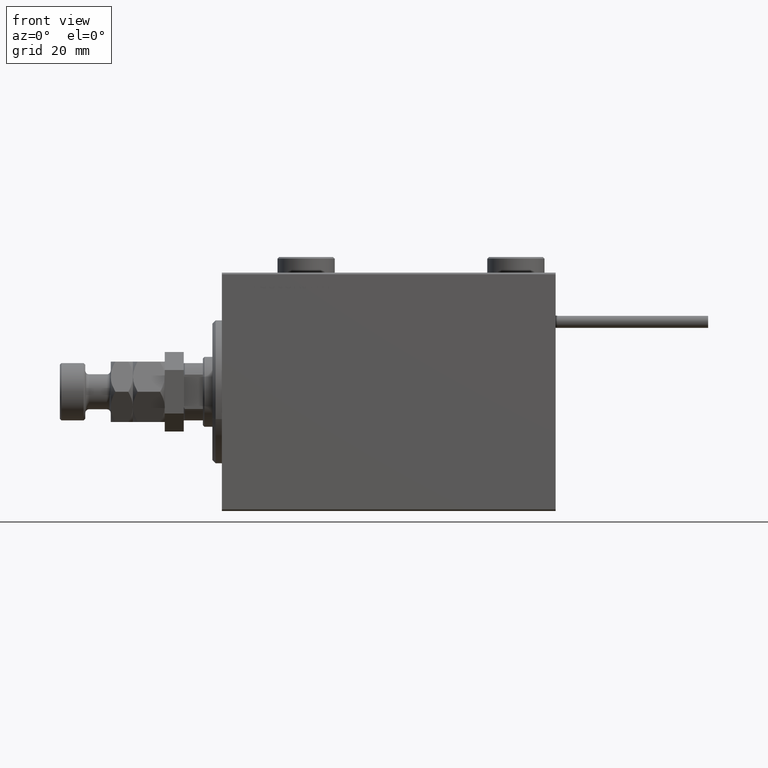
[diagram: clean part render]
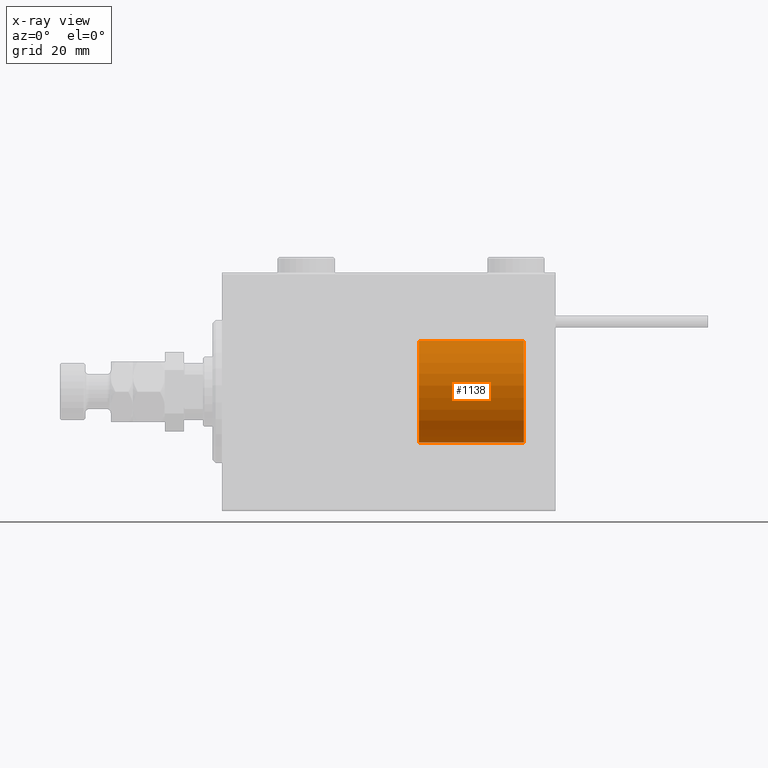
[diagram: x-ray — body ghosted, one internal face saturated and labeled with its STEP entity id]
A machine part, front view, then the same camera in x-ray: the body is ghosted and one INTERNAL B-rep face — a face not visible from any outside direction — is saturated and labeled: STEP entity #1138.
In plain terms, the highlighted cylindrical surface (partial cylindrical patch) has radius 16 mm, axis along (1, -0, -0).
Its self-contained STEP definition (entity closure, byte-faithful):
#825 = CARTESIAN_POINT ( 'NONE',  ( -16.00000000000000000, 0.000000000000000000, 0.000000000000000000 ) ) ;
#1138 = ADVANCED_FACE ( 'NONE', ( #20160 ), #32254, .T. ) ;
#4265 = DIRECTION ( 'NONE',  ( -0.000000000000000000, -0.000000000000000000, -1.000000000000000000 ) ) ;
#4502 = ORIENTED_EDGE ( 'NONE', *, *, #13050, .F. ) ;
#5587 = EDGE_CURVE ( 'NONE', #19393, #23170, #21126, .T. ) ;
#6154 = VERTEX_POINT ( 'NONE', #18544 ) ;
#6271 = VECTOR ( 'NONE', #36727, 1000.000000000000000 ) ;
#6393 = CARTESIAN_POINT ( 'NONE',  ( 16.00000000000000000, 1.959434878635765131E-15, 33.00000000000000000 ) ) ;
#7218 = DIRECTION ( 'NONE',  ( 0.000000000000000000, 0.000000000000000000, 1.000000000000000000 ) ) ;
#8313 = CARTESIAN_POINT ( 'NONE',  ( 0.000000000000000000, 0.000000000000000000, 33.00000000000000000 ) ) ;
#9661 = CARTESIAN_POINT ( 'NONE',  ( -16.00000000000000000, 0.000000000000000000, 33.00000000000000000 ) ) ;
#10733 = AXIS2_PLACEMENT_3D ( 'NONE', #51620, #36769, #11760 ) ;
#11760 = DIRECTION ( 'NONE',  ( 1.000000000000000000, 0.000000000000000000, 0.000000000000000000 ) ) ;
#13050 = EDGE_CURVE ( 'NONE', #19393, #30279, #24490, .T. ) ;
#14487 = CARTESIAN_POINT ( 'NONE',  ( 0.000000000000000000, 0.000000000000000000, 0.000000000000000000 ) ) ;
#15109 = VECTOR ( 'NONE', #21907, 1000.000000000000000 ) ;
#16261 = CIRCLE ( 'NONE', #31729, 16.00000000000000000 ) ;
#18544 = CARTESIAN_POINT ( 'NONE',  ( 16.00000000000000000, 1.959434878635765131E-15, 0.000000000000000000 ) ) ;
#19393 = VERTEX_POINT ( 'NONE', #9661 ) ;
#20160 = FACE_OUTER_BOUND ( 'NONE', #38698, .T. ) ;
#21126 = LINE ( 'NONE', #32690, #6271 ) ;
#21642 = CARTESIAN_POINT ( 'NONE',  ( 16.00000000000000000, 1.959434878635765131E-15, 33.00000000000000000 ) ) ;
#21907 = DIRECTION ( 'NONE',  ( -0.000000000000000000, -0.000000000000000000, -1.000000000000000000 ) ) ;
#23170 = VERTEX_POINT ( 'NONE', #825 ) ;
#24490 = CIRCLE ( 'NONE', #10733, 16.00000000000000000 ) ;
#24725 = DIRECTION ( 'NONE',  ( -1.000000000000000000, 0.000000000000000000, 0.000000000000000000 ) ) ;
#25950 = LINE ( 'NONE', #21642, #15109 ) ;
#26864 = DIRECTION ( 'NONE',  ( 1.000000000000000000, 0.000000000000000000, 0.000000000000000000 ) ) ;
#28379 = ORIENTED_EDGE ( 'NONE', *, *, #5587, .T. ) ;
#29279 = AXIS2_PLACEMENT_3D ( 'NONE', #8313, #4265, #24725 ) ;
#30279 = VERTEX_POINT ( 'NONE', #6393 ) ;
#30837 = EDGE_CURVE ( 'NONE', #23170, #6154, #16261, .T. ) ;
#31729 = AXIS2_PLACEMENT_3D ( 'NONE', #14487, #7218, #26864 ) ;
#32254 = CYLINDRICAL_SURFACE ( 'NONE', #29279, 16.00000000000000000 ) ;
#32690 = CARTESIAN_POINT ( 'NONE',  ( -16.00000000000000000, 0.000000000000000000, 33.00000000000000000 ) ) ;
#36727 = DIRECTION ( 'NONE',  ( -0.000000000000000000, -0.000000000000000000, -1.000000000000000000 ) ) ;
#36769 = DIRECTION ( 'NONE',  ( 0.000000000000000000, 0.000000000000000000, 1.000000000000000000 ) ) ;
#37576 = ORIENTED_EDGE ( 'NONE', *, *, #50671, .F. ) ;
#38698 = EDGE_LOOP ( 'NONE', ( #37576, #4502, #28379, #52862 ) ) ;
#50671 = EDGE_CURVE ( 'NONE', #30279, #6154, #25950, .T. ) ;
#51620 = CARTESIAN_POINT ( 'NONE',  ( 0.000000000000000000, 0.000000000000000000, 33.00000000000000000 ) ) ;
#52862 = ORIENTED_EDGE ( 'NONE', *, *, #30837, .T. ) ;